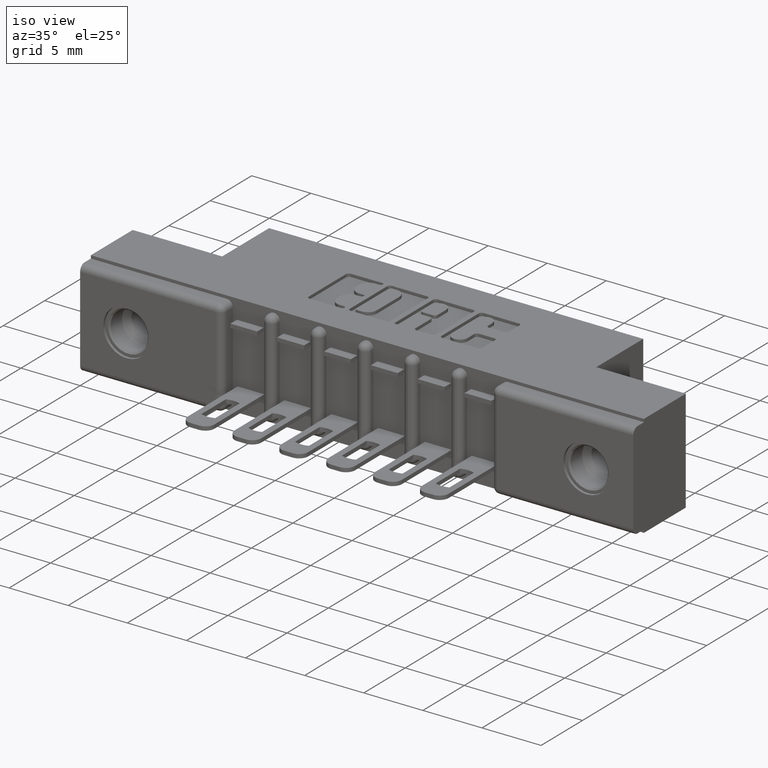
[diagram: clean part render]
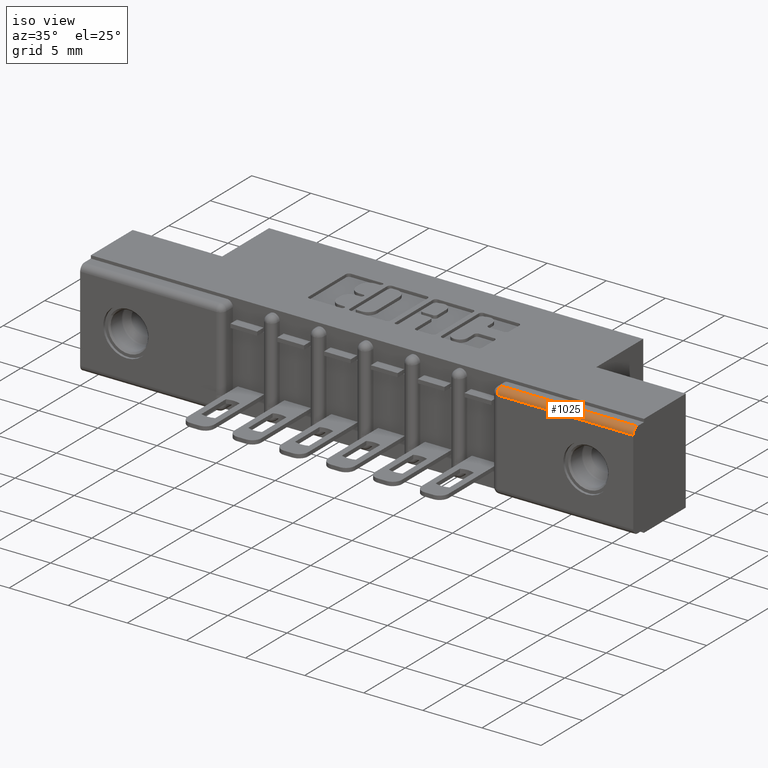
[diagram: same view with one face highlighted and labeled with its STEP entity id]
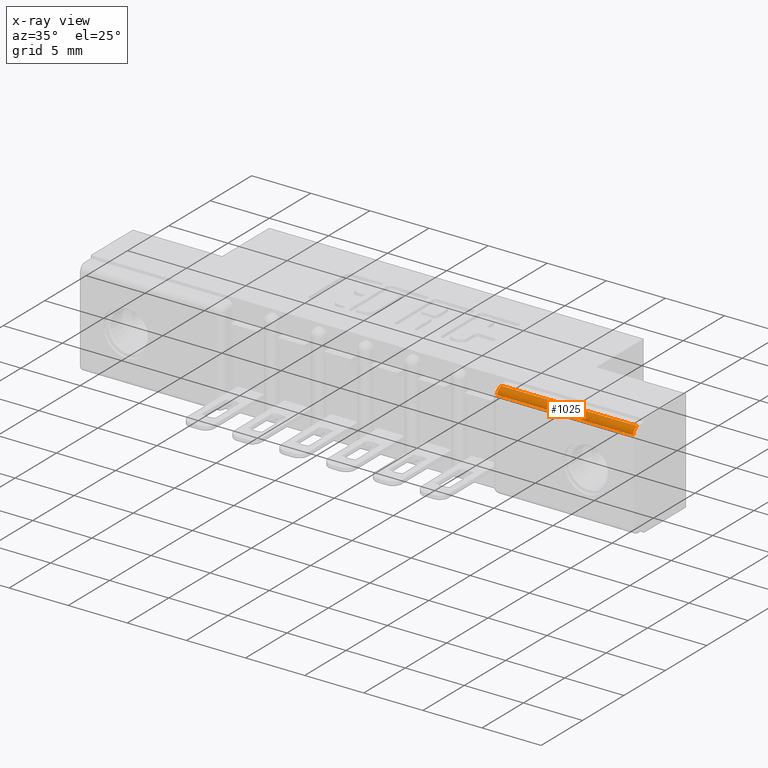
[diagram: x-ray of the same camera — body ghosted, the highlighted face saturated]
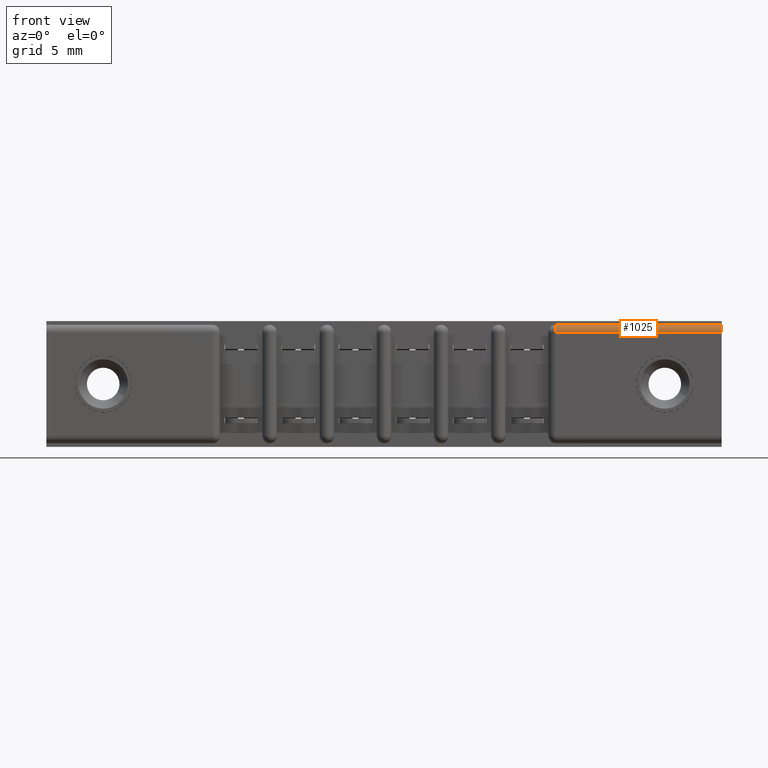
[diagram: same view with one face highlighted and labeled with its STEP entity id]
A machine part, iso view. The second image highlights one B-rep face of the part: STEP entity #1025.
The next image is the same camera in x-ray: the body ghosted, the highlighted face saturated — about 0% of this face is hidden behind the body in this view.
A second angle (front view) of the same face is appended — the face is thin or edge-on in the first view.
In plain terms, the highlighted cylindrical surface (edge-blend (fillet) strip) has radius 0.508 mm, axis along (-1, 0, 0).
Its self-contained STEP definition (entity closure, byte-faithful):
#116 = CARTESIAN_POINT ( 'NONE',  ( 1.389000000000000500, 0.0000000000000000000, -0.03000000000000015800 ) ) ;
#184 = DIRECTION ( 'NONE',  ( -1.000000000000000000, 0.0000000000000000000, 0.0000000000000000000 ) ) ;
#484 = CYLINDRICAL_SURFACE ( 'NONE', #5658, 0.02000000000000000000 ) ;
#565 = VECTOR ( 'NONE', #9482, 39.37007874015748100 ) ;
#1003 = VERTEX_POINT ( 'NONE', #11470 ) ;
#1025 = ADVANCED_FACE ( 'NONE', ( #1992 ), #484, .T. ) ;
#1809 = CARTESIAN_POINT ( 'NONE',  ( 1.842000000000000700, 0.02000000000000000000, -0.03000000000000015800 ) ) ;
#1917 = VECTOR ( 'NONE', #9178, 39.37007874015748100 ) ;
#1992 = FACE_OUTER_BOUND ( 'NONE', #6382, .T. ) ;
#2034 = EDGE_CURVE ( 'NONE', #2505, #6654, #6245, .T. ) ;
#2505 = VERTEX_POINT ( 'NONE', #116 ) ;
#2686 = CARTESIAN_POINT ( 'NONE',  ( 1.842000000000000700, 0.02000000000000000000, -0.01000000000000013200 ) ) ;
#3171 = ORIENTED_EDGE ( 'NONE', *, *, #5675, .F. ) ;
#3282 = EDGE_CURVE ( 'NONE', #6654, #5115, #6793, .T. ) ;
#3673 = ORIENTED_EDGE ( 'NONE', *, *, #3282, .F. ) ;
#3947 = ORIENTED_EDGE ( 'NONE', *, *, #2034, .F. ) ;
#4123 = ORIENTED_EDGE ( 'NONE', *, *, #5482, .F. ) ;
#4219 = AXIS2_PLACEMENT_3D ( 'NONE', #1809, #6231, #8604 ) ;
#5115 = VERTEX_POINT ( 'NONE', #10352 ) ;
#5300 = CARTESIAN_POINT ( 'NONE',  ( 1.389000000000000500, 0.02000000000000000000, -0.01000000000000013200 ) ) ;
#5347 = AXIS2_PLACEMENT_3D ( 'NONE', #10859, #184, #10743 ) ;
#5482 = EDGE_CURVE ( 'NONE', #1003, #2505, #7834, .T. ) ;
#5658 = AXIS2_PLACEMENT_3D ( 'NONE', #11157, #8785, #8401 ) ;
#5675 = EDGE_CURVE ( 'NONE', #5115, #1003, #8808, .T. ) ;
#6231 = DIRECTION ( 'NONE',  ( 1.000000000000000000, -0.0000000000000000000, -0.0000000000000000000 ) ) ;
#6245 = CIRCLE ( 'NONE', #5347, 0.02000000000000000000 ) ;
#6382 = EDGE_LOOP ( 'NONE', ( #3171, #3673, #3947, #4123 ) ) ;
#6654 = VERTEX_POINT ( 'NONE', #5300 ) ;
#6793 = LINE ( 'NONE', #2686, #1917 ) ;
#7834 = LINE ( 'NONE', #10226, #565 ) ;
#8401 = DIRECTION ( 'NONE',  ( 0.0000000000000000000, 0.0000000000000000000, 1.000000000000000000 ) ) ;
#8604 = DIRECTION ( 'NONE',  ( 0.0000000000000000000, 0.0000000000000000000, 1.000000000000000000 ) ) ;
#8785 = DIRECTION ( 'NONE',  ( -1.000000000000000000, 0.0000000000000000000, 0.0000000000000000000 ) ) ;
#8808 = CIRCLE ( 'NONE', #4219, 0.02000000000000000000 ) ;
#9178 = DIRECTION ( 'NONE',  ( 1.000000000000000000, -0.0000000000000000000, -0.0000000000000000000 ) ) ;
#9482 = DIRECTION ( 'NONE',  ( -1.000000000000000000, 0.0000000000000000000, 0.0000000000000000000 ) ) ;
#10226 = CARTESIAN_POINT ( 'NONE',  ( 0.0000000000000000000, 0.0000000000000000000, -0.03000000000000015800 ) ) ;
#10352 = CARTESIAN_POINT ( 'NONE',  ( 1.842000000000000700, 0.02000000000000000000, -0.01000000000000013200 ) ) ;
#10743 = DIRECTION ( 'NONE',  ( 0.0000000000000000000, 0.0000000000000000000, 1.000000000000000000 ) ) ;
#10859 = CARTESIAN_POINT ( 'NONE',  ( 1.389000000000000500, 0.02000000000000000000, -0.03000000000000015800 ) ) ;
#11157 = CARTESIAN_POINT ( 'NONE',  ( 0.0000000000000000000, 0.02000000000000000000, -0.03000000000000015800 ) ) ;
#11470 = CARTESIAN_POINT ( 'NONE',  ( 1.842000000000000700, 0.0000000000000000000, -0.03000000000000015800 ) ) ;